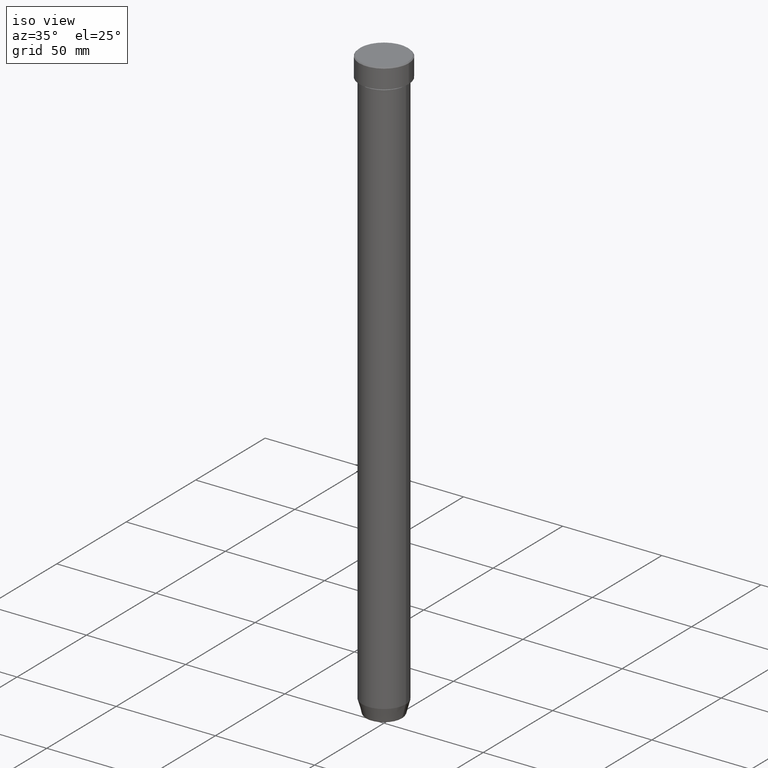
[diagram: clean part render]
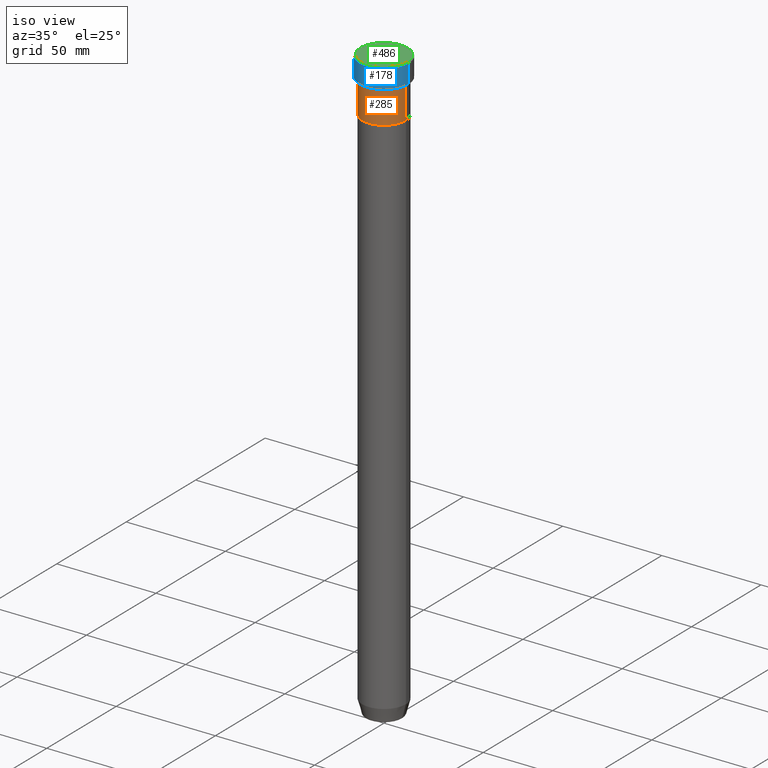
[diagram: same view with three faces highlighted in distinct colors, each labeled with its STEP entity id]
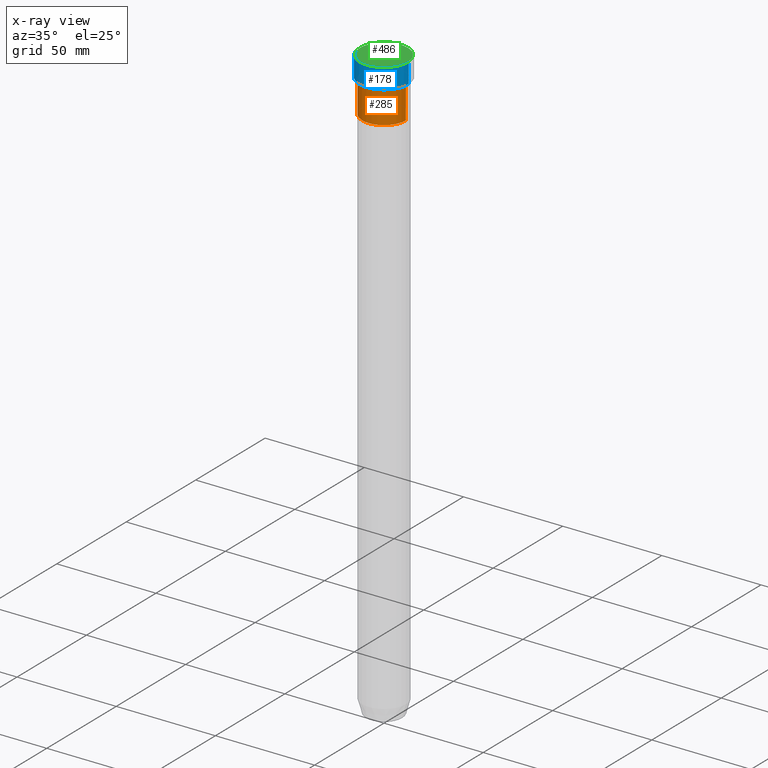
[diagram: x-ray of the same camera — body ghosted, the three highlighted faces saturated]
A machine part, iso view with three faces highlighted in distinct colors.
The next image is the same camera in x-ray (body ghosted, the three faces saturated) — at least one of them is partly hidden behind the body in this view.
Their STEP definitions:

[orange] entity #285 — the highlighted cylindrical surface (edge-blend (fillet) strip) has radius 11 mm, axis along (-0, -0, 1).
#1 = DIRECTION ( 'NONE',  ( 1.000000000000000000, 0.000000000000000000, 0.000000000000000000 ) ) ;
#14 = CARTESIAN_POINT ( 'NONE',  ( -11.00000000000000000, 1.347111479062088405E-15, -11.00000000000000000 ) ) ;
#34 = CARTESIAN_POINT ( 'NONE',  ( 0.000000000000000000, 0.000000000000000000, 0.000000000000000000 ) ) ;
#52 = CYLINDRICAL_SURFACE ( 'NONE', #491, 11.00000000000000000 ) ;
#54 = EDGE_CURVE ( 'NONE', #208, #489, #365, .T. ) ;
#78 = EDGE_LOOP ( 'NONE', ( #497, #189, #490, #224 ) ) ;
#81 = EDGE_CURVE ( 'NONE', #177, #375, #596, .T. ) ;
#85 = AXIS2_PLACEMENT_3D ( 'NONE', #102, #371, #424 ) ;
#102 = CARTESIAN_POINT ( 'NONE',  ( 0.000000000000000000, 0.000000000000000000, -27.00000000000000000 ) ) ;
#165 = CIRCLE ( 'NONE', #301, 11.00000000000000000 ) ;
#167 = DIRECTION ( 'NONE',  ( 1.000000000000000000, 0.000000000000000000, 0.000000000000000000 ) ) ;
#177 = VERTEX_POINT ( 'NONE', #210 ) ;
#185 = FACE_OUTER_BOUND ( 'NONE', #78, .T. ) ;
#189 = ORIENTED_EDGE ( 'NONE', *, *, #482, .T. ) ;
#191 = CARTESIAN_POINT ( 'NONE',  ( -11.00000000000000000, 1.347111479062088405E-15, 0.000000000000000000 ) ) ;
#208 = VERTEX_POINT ( 'NONE', #269 ) ;
#210 = CARTESIAN_POINT ( 'NONE',  ( 11.00000000000000000, 0.000000000000000000, -27.00000000000000000 ) ) ;
#224 = ORIENTED_EDGE ( 'NONE', *, *, #241, .F. ) ;
#229 = CIRCLE ( 'NONE', #85, 11.00000000000000000 ) ;
#241 = EDGE_CURVE ( 'NONE', #489, #375, #165, .T. ) ;
#269 = CARTESIAN_POINT ( 'NONE',  ( -11.00000000000000000, 1.347111479062088405E-15, -27.00000000000000000 ) ) ;
#280 = CARTESIAN_POINT ( 'NONE',  ( 11.00000000000000000, 0.000000000000000000, -11.00000000000000000 ) ) ;
#285 = ADVANCED_FACE ( 'NONE', ( #185 ), #52, .T. ) ;
#301 = AXIS2_PLACEMENT_3D ( 'NONE', #354, #544, #1 ) ;
#303 = DIRECTION ( 'NONE',  ( -0.000000000000000000, -0.000000000000000000, 1.000000000000000000 ) ) ;
#310 = DIRECTION ( 'NONE',  ( -0.000000000000000000, -0.000000000000000000, 1.000000000000000000 ) ) ;
#322 = CARTESIAN_POINT ( 'NONE',  ( 11.00000000000000000, 0.000000000000000000, 0.000000000000000000 ) ) ;
#354 = CARTESIAN_POINT ( 'NONE',  ( 0.000000000000000000, 0.000000000000000000, -11.00000000000000000 ) ) ;
#365 = LINE ( 'NONE', #191, #429 ) ;
#371 = DIRECTION ( 'NONE',  ( -0.000000000000000000, -0.000000000000000000, 1.000000000000000000 ) ) ;
#375 = VERTEX_POINT ( 'NONE', #280 ) ;
#424 = DIRECTION ( 'NONE',  ( 1.000000000000000000, 0.000000000000000000, 0.000000000000000000 ) ) ;
#429 = VECTOR ( 'NONE', #559, 1000.000000000000000 ) ;
#472 = VECTOR ( 'NONE', #310, 1000.000000000000000 ) ;
#482 = EDGE_CURVE ( 'NONE', #208, #177, #229, .T. ) ;
#489 = VERTEX_POINT ( 'NONE', #14 ) ;
#490 = ORIENTED_EDGE ( 'NONE', *, *, #81, .T. ) ;
#491 = AXIS2_PLACEMENT_3D ( 'NONE', #34, #303, #167 ) ;
#497 = ORIENTED_EDGE ( 'NONE', *, *, #54, .F. ) ;
#544 = DIRECTION ( 'NONE',  ( -0.000000000000000000, -0.000000000000000000, 1.000000000000000000 ) ) ;
#559 = DIRECTION ( 'NONE',  ( -0.000000000000000000, -0.000000000000000000, 1.000000000000000000 ) ) ;
#596 = LINE ( 'NONE', #322, #472 ) ;

[blue] entity #178 — the highlighted cylindrical surface (edge-blend (fillet) strip) has radius 12.5 mm, axis along (-0, -0, 1).
#32 = CYLINDRICAL_SURFACE ( 'NONE', #597, 12.50000000000000000 ) ;
#41 = ORIENTED_EDGE ( 'NONE', *, *, #286, .T. ) ;
#79 = FACE_OUTER_BOUND ( 'NONE', #353, .T. ) ;
#126 = CARTESIAN_POINT ( 'NONE',  ( -12.50000000000000000, 1.530808498934191521E-15, -0.4999999999999988343 ) ) ;
#128 = VERTEX_POINT ( 'NONE', #359 ) ;
#129 = CARTESIAN_POINT ( 'NONE',  ( 0.000000000000000000, 0.000000000000000000, -0.4999999999999988343 ) ) ;
#143 = VERTEX_POINT ( 'NONE', #126 ) ;
#147 = VERTEX_POINT ( 'NONE', #584 ) ;
#156 = DIRECTION ( 'NONE',  ( -0.000000000000000000, -0.000000000000000000, 1.000000000000000000 ) ) ;
#170 = DIRECTION ( 'NONE',  ( 1.000000000000000000, 0.000000000000000000, 0.000000000000000000 ) ) ;
#178 = ADVANCED_FACE ( 'NONE', ( #79 ), #32, .T. ) ;
#204 = AXIS2_PLACEMENT_3D ( 'NONE', #386, #475, #327 ) ;
#206 = CARTESIAN_POINT ( 'NONE',  ( 12.50000000000000000, 0.000000000000000000, 0.000000000000000000 ) ) ;
#214 = CARTESIAN_POINT ( 'NONE',  ( 0.000000000000000000, 0.000000000000000000, 0.000000000000000000 ) ) ;
#216 = ORIENTED_EDGE ( 'NONE', *, *, #390, .F. ) ;
#242 = CARTESIAN_POINT ( 'NONE',  ( -12.50000000000000000, 1.530808498934191521E-15, 0.000000000000000000 ) ) ;
#286 = EDGE_CURVE ( 'NONE', #147, #143, #519, .T. ) ;
#298 = DIRECTION ( 'NONE',  ( 0.000000000000000000, 0.000000000000000000, -1.000000000000000000 ) ) ;
#323 = DIRECTION ( 'NONE',  ( -0.000000000000000000, -0.000000000000000000, 1.000000000000000000 ) ) ;
#327 = DIRECTION ( 'NONE',  ( 1.000000000000000000, 0.000000000000000000, 0.000000000000000000 ) ) ;
#336 = ORIENTED_EDGE ( 'NONE', *, *, #337, .T. ) ;
#337 = EDGE_CURVE ( 'NONE', #517, #147, #426, .T. ) ;
#353 = EDGE_LOOP ( 'NONE', ( #216, #401, #336, #41 ) ) ;
#359 = CARTESIAN_POINT ( 'NONE',  ( -12.50000000000000000, 1.530808498934191521E-15, -10.00000000000000000 ) ) ;
#386 = CARTESIAN_POINT ( 'NONE',  ( 0.000000000000000000, 0.000000000000000000, -10.00000000000000000 ) ) ;
#390 = EDGE_CURVE ( 'NONE', #128, #143, #532, .T. ) ;
#397 = VECTOR ( 'NONE', #156, 1000.000000000000000 ) ;
#401 = ORIENTED_EDGE ( 'NONE', *, *, #514, .T. ) ;
#426 = LINE ( 'NONE', #206, #502 ) ;
#432 = CIRCLE ( 'NONE', #204, 12.50000000000000000 ) ;
#454 = DIRECTION ( 'NONE',  ( 1.000000000000000000, 0.000000000000000000, 0.000000000000000000 ) ) ;
#475 = DIRECTION ( 'NONE',  ( -0.000000000000000000, -0.000000000000000000, 1.000000000000000000 ) ) ;
#502 = VECTOR ( 'NONE', #323, 1000.000000000000000 ) ;
#514 = EDGE_CURVE ( 'NONE', #128, #517, #432, .T. ) ;
#517 = VERTEX_POINT ( 'NONE', #531 ) ;
#519 = CIRCLE ( 'NONE', #580, 12.50000000000000000 ) ;
#531 = CARTESIAN_POINT ( 'NONE',  ( 12.50000000000000000, 0.000000000000000000, -10.00000000000000000 ) ) ;
#532 = LINE ( 'NONE', #242, #397 ) ;
#580 = AXIS2_PLACEMENT_3D ( 'NONE', #129, #298, #454 ) ;
#584 = CARTESIAN_POINT ( 'NONE',  ( 12.50000000000000000, 0.000000000000000000, -0.4999999999999988343 ) ) ;
#589 = DIRECTION ( 'NONE',  ( -0.000000000000000000, -0.000000000000000000, 1.000000000000000000 ) ) ;
#597 = AXIS2_PLACEMENT_3D ( 'NONE', #214, #589, #170 ) ;

[green] entity #486 — the highlighted planar face has unit normal (0, -0, 1).
#8 = AXIS2_PLACEMENT_3D ( 'NONE', #593, #599, #39 ) ;
#11 = FACE_OUTER_BOUND ( 'NONE', #453, .T. ) ;
#39 = DIRECTION ( 'NONE',  ( 1.000000000000000000, 0.000000000000000000, 0.000000000000000000 ) ) ;
#51 = DIRECTION ( 'NONE',  ( 1.000000000000000000, 0.000000000000000000, 0.000000000000000000 ) ) ;
#64 = DIRECTION ( 'NONE',  ( -0.000000000000000000, -0.000000000000000000, 1.000000000000000000 ) ) ;
#83 = VERTEX_POINT ( 'NONE', #527 ) ;
#144 = EDGE_CURVE ( 'NONE', #83, #421, #485, .T. ) ;
#184 = EDGE_CURVE ( 'NONE', #421, #83, #551, .T. ) ;
#196 = PLANE ( 'NONE',  #422 ) ;
#198 = CARTESIAN_POINT ( 'NONE',  ( 0.000000000000000000, 0.000000000000000000, 0.000000000000000000 ) ) ;
#238 = DIRECTION ( 'NONE',  ( 1.000000000000000000, 0.000000000000000000, 0.000000000000000000 ) ) ;
#304 = ORIENTED_EDGE ( 'NONE', *, *, #184, .T. ) ;
#421 = VERTEX_POINT ( 'NONE', #465 ) ;
#422 = AXIS2_PLACEMENT_3D ( 'NONE', #569, #528, #238 ) ;
#453 = EDGE_LOOP ( 'NONE', ( #304, #539 ) ) ;
#465 = CARTESIAN_POINT ( 'NONE',  ( -12.00000000000000355, 0.000000000000000000, 0.000000000000000000 ) ) ;
#485 = CIRCLE ( 'NONE', #8, 12.00000000000000355 ) ;
#486 = ADVANCED_FACE ( 'NONE', ( #11 ), #196, .T. ) ;
#527 = CARTESIAN_POINT ( 'NONE',  ( 12.00000000000000355, 1.500192328955507734E-15, 0.000000000000000000 ) ) ;
#528 = DIRECTION ( 'NONE',  ( 0.000000000000000000, -0.000000000000000000, 1.000000000000000000 ) ) ;
#536 = AXIS2_PLACEMENT_3D ( 'NONE', #198, #64, #51 ) ;
#539 = ORIENTED_EDGE ( 'NONE', *, *, #144, .T. ) ;
#551 = CIRCLE ( 'NONE', #536, 12.00000000000000355 ) ;
#569 = CARTESIAN_POINT ( 'NONE',  ( 0.000000000000000000, 0.000000000000000000, 0.000000000000000000 ) ) ;
#593 = CARTESIAN_POINT ( 'NONE',  ( 0.000000000000000000, 0.000000000000000000, 0.000000000000000000 ) ) ;
#599 = DIRECTION ( 'NONE',  ( -0.000000000000000000, -0.000000000000000000, 1.000000000000000000 ) ) ;